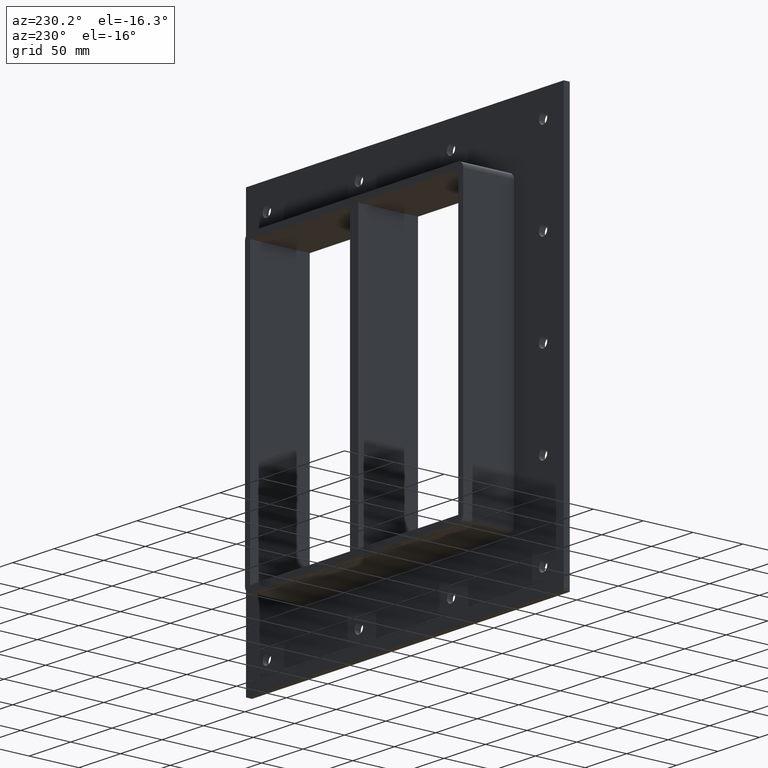
[diagram: clean part render]
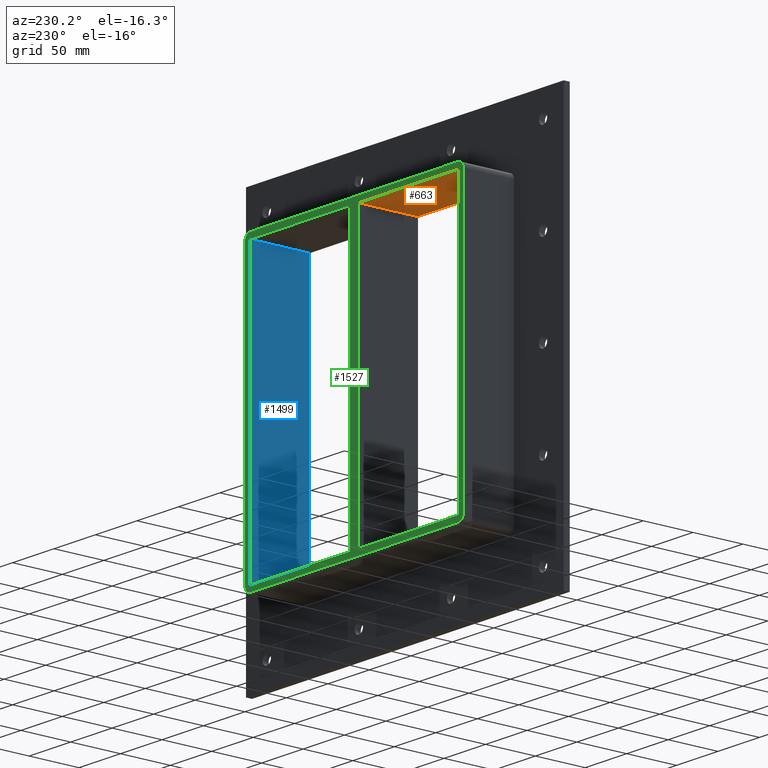
[diagram: same view with three faces highlighted in distinct colors, each labeled with its STEP entity id]
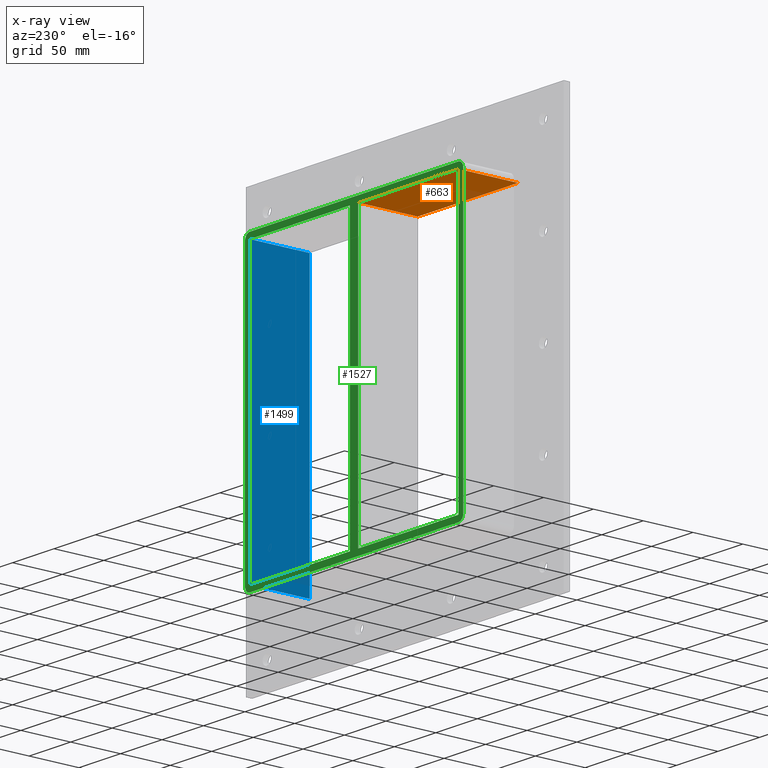
[diagram: x-ray of the same camera — body ghosted, the three highlighted faces saturated]
A machine part, auxiliary view with three faces highlighted in distinct colors.
The next image is the same camera in x-ray (body ghosted, the three faces saturated) — at least one of them is partly hidden behind the body in this view.
Their STEP definitions:

[orange] entity #663 — the highlighted planar face has unit normal (0, 0, 1).
#467=CARTESIAN_POINT('',(-5.000000000001368,-3.0,139.0));
#468=VERTEX_POINT('',#467);
#475=CARTESIAN_POINT('',(-5.000000000001368,57.0,139.0));
#476=VERTEX_POINT('',#475);
#477=CARTESIAN_POINT('',(-5.000000000001368,57.000000000000007,139.0));
#478=DIRECTION('',(0.0,-1.0,0.0));
#479=VECTOR('',#478,60.000000000000007);
#480=LINE('',#477,#479);
#481=EDGE_CURVE('',#476,#468,#480,.T.);
#633=CARTESIAN_POINT('',(-125.5,0.0,139.0));
#634=DIRECTION('',(0.0,0.0,1.0));
#635=DIRECTION('',(1.0,0.0,0.0));
#636=AXIS2_PLACEMENT_3D('',#633,#634,#635);
#637=PLANE('',#636);
#638=ORIENTED_EDGE('',*,*,#481,.T.);
#639=CARTESIAN_POINT('',(-125.50000000000003,-3.0,139.0));
#640=VERTEX_POINT('',#639);
#641=CARTESIAN_POINT('',(-125.50000000000003,-3.0,139.0));
#642=DIRECTION('',(1.0,0.0,0.0));
#643=VECTOR('',#642,120.49999999999866);
#644=LINE('',#641,#643);
#645=EDGE_CURVE('',#640,#468,#644,.T.);
#646=ORIENTED_EDGE('',*,*,#645,.F.);
#647=CARTESIAN_POINT('',(-125.50000000000003,57.0,139.0));
#648=VERTEX_POINT('',#647);
#649=CARTESIAN_POINT('',(-125.5,-3.0,139.0));
#650=DIRECTION('',(0.0,1.0,0.0));
#651=VECTOR('',#650,60.0);
#652=LINE('',#649,#651);
#653=EDGE_CURVE('',#640,#648,#652,.T.);
#654=ORIENTED_EDGE('',*,*,#653,.T.);
#655=CARTESIAN_POINT('',(-5.000000000001371,57.0,139.0));
#656=DIRECTION('',(-1.0,0.0,0.0));
#657=VECTOR('',#656,120.49999999999866);
#658=LINE('',#655,#657);
#659=EDGE_CURVE('',#476,#648,#658,.T.);
#660=ORIENTED_EDGE('',*,*,#659,.F.);
#661=EDGE_LOOP('',(#638,#646,#654,#660));
#662=FACE_OUTER_BOUND('',#661,.T.);
#663=ADVANCED_FACE('',(#662),#637,.F.);

[blue] entity #1499 — the highlighted planar face has unit normal (1, 0, 0).
#577=CARTESIAN_POINT('',(125.49999999999999,-3.0,-139.0));
#578=VERTEX_POINT('',#577);
#585=CARTESIAN_POINT('',(125.49999999999999,57.0,-139.0));
#586=VERTEX_POINT('',#585);
#587=CARTESIAN_POINT('',(125.49999999999999,56.999999999999993,-139.0));
#588=DIRECTION('',(0.0,-1.0,0.0));
#589=VECTOR('',#588,59.999999999999993);
#590=LINE('',#587,#589);
#591=EDGE_CURVE('',#586,#578,#590,.T.);
#608=CARTESIAN_POINT('',(125.49999999999999,57.0,139.0));
#609=VERTEX_POINT('',#608);
#616=CARTESIAN_POINT('',(125.49999999999999,-3.0,139.0));
#617=VERTEX_POINT('',#616);
#618=CARTESIAN_POINT('',(125.49999999999999,-3.0,139.0));
#619=DIRECTION('',(0.0,1.0,0.0));
#620=VECTOR('',#619,60.0);
#621=LINE('',#618,#620);
#622=EDGE_CURVE('',#617,#609,#621,.T.);
#1382=CARTESIAN_POINT('',(125.49999999999999,-3.0,139.0));
#1383=DIRECTION('',(0.0,0.0,-1.0));
#1384=VECTOR('',#1383,278.0);
#1385=LINE('',#1382,#1384);
#1386=EDGE_CURVE('',#617,#578,#1385,.T.);
#1483=CARTESIAN_POINT('',(125.49999999999999,0.0,139.0));
#1484=DIRECTION('',(1.0,0.0,0.0));
#1485=DIRECTION('',(0.0,0.0,-1.0));
#1486=AXIS2_PLACEMENT_3D('',#1483,#1484,#1485);
#1487=PLANE('',#1486);
#1488=ORIENTED_EDGE('',*,*,#591,.T.);
#1489=ORIENTED_EDGE('',*,*,#1386,.F.);
#1490=ORIENTED_EDGE('',*,*,#622,.T.);
#1491=CARTESIAN_POINT('',(125.49999999999999,57.0,-138.99999999999997));
#1492=DIRECTION('',(0.0,0.0,1.0));
#1493=VECTOR('',#1492,278.0);
#1494=LINE('',#1491,#1493);
#1495=EDGE_CURVE('',#586,#609,#1494,.T.);
#1496=ORIENTED_EDGE('',*,*,#1495,.F.);
#1497=EDGE_LOOP('',(#1488,#1489,#1490,#1496));
#1498=FACE_OUTER_BOUND('',#1497,.T.);
#1499=ADVANCED_FACE('',(#1498),#1487,.F.);

[green] entity #1527 — the highlighted planar face has unit normal (0, 1, 0).
#475=CARTESIAN_POINT('',(-5.000000000001368,57.0,139.0));
#476=VERTEX_POINT('',#475);
#483=CARTESIAN_POINT('',(-5.000000000001315,57.0,-139.0));
#484=VERTEX_POINT('',#483);
#485=CARTESIAN_POINT('',(-5.000000000001315,57.0,-139.0));
#486=DIRECTION('',(0.0,0.0,1.0));
#487=VECTOR('',#486,278.0);
#488=LINE('',#485,#487);
#489=EDGE_CURVE('',#484,#476,#488,.T.);
#515=CARTESIAN_POINT('',(5.0,57.0,-138.99999999998175));
#516=VERTEX_POINT('',#515);
#523=CARTESIAN_POINT('',(5.0,57.0,139.0));
#524=VERTEX_POINT('',#523);
#525=CARTESIAN_POINT('',(5.0,57.0,139.0));
#526=DIRECTION('',(0.0,0.0,-1.0));
#527=VECTOR('',#526,277.99999999998175);
#528=LINE('',#525,#527);
#529=EDGE_CURVE('',#524,#516,#528,.T.);
#546=CARTESIAN_POINT('',(-125.50000000000003,57.0,-139.0));
#547=VERTEX_POINT('',#546);
#548=CARTESIAN_POINT('',(-125.50000000000004,57.0,-139.0));
#549=DIRECTION('',(1.0,0.0,0.0));
#550=VECTOR('',#549,120.49999999999872);
#551=LINE('',#548,#550);
#552=EDGE_CURVE('',#547,#484,#551,.T.);
#585=CARTESIAN_POINT('',(125.49999999999999,57.0,-139.0));
#586=VERTEX_POINT('',#585);
#593=CARTESIAN_POINT('',(5.0,57.0,-139.0));
#594=DIRECTION('',(1.0,0.0,0.0));
#595=VECTOR('',#594,120.49999999999999);
#596=LINE('',#593,#595);
#597=EDGE_CURVE('',#516,#586,#596,.T.);
#608=CARTESIAN_POINT('',(125.49999999999999,57.0,139.0));
#609=VERTEX_POINT('',#608);
#610=CARTESIAN_POINT('',(125.49999999999999,57.0,139.0));
#611=DIRECTION('',(-1.0,0.0,0.0));
#612=VECTOR('',#611,120.49999999999999);
#613=LINE('',#610,#612);
#614=EDGE_CURVE('',#609,#524,#613,.T.);
#647=CARTESIAN_POINT('',(-125.50000000000003,57.0,139.0));
#648=VERTEX_POINT('',#647);
#655=CARTESIAN_POINT('',(-5.000000000001371,57.0,139.0));
#656=DIRECTION('',(-1.0,0.0,0.0));
#657=VECTOR('',#656,120.49999999999866);
#658=LINE('',#655,#657);
#659=EDGE_CURVE('',#476,#648,#658,.T.);
#1042=CARTESIAN_POINT('',(-125.5,57.0,138.99999999999997));
#1043=DIRECTION('',(0.0,0.0,-1.0));
#1044=VECTOR('',#1043,278.0);
#1045=LINE('',#1042,#1044);
#1046=EDGE_CURVE('',#648,#547,#1045,.T.);
#1096=CARTESIAN_POINT('',(131.5,57.0,139.0));
#1097=VERTEX_POINT('',#1096);
#1104=CARTESIAN_POINT('',(125.5,57.0,145.0));
#1105=VERTEX_POINT('',#1104);
#1106=CARTESIAN_POINT('',(125.5,57.0,139.0));
#1107=DIRECTION('',(0.0,-1.0,0.0));
#1108=DIRECTION('',(0.707106781186548,0.0,0.707106781186548));
#1109=AXIS2_PLACEMENT_3D('',#1106,#1107,#1108);
#1110=CIRCLE('',#1109,6.000000000000002);
#1111=EDGE_CURVE('',#1097,#1105,#1110,.T.);
#1152=CARTESIAN_POINT('',(131.5,57.0,-139.0));
#1153=VERTEX_POINT('',#1152);
#1160=CARTESIAN_POINT('',(131.5,57.0,139.0));
#1161=DIRECTION('',(0.0,0.0,-1.0));
#1162=VECTOR('',#1161,278.0);
#1163=LINE('',#1160,#1162);
#1164=EDGE_CURVE('',#1097,#1153,#1163,.T.);
#1225=CARTESIAN_POINT('',(125.49999999999997,57.0,-145.0));
#1226=VERTEX_POINT('',#1225);
#1233=CARTESIAN_POINT('',(125.49999999999997,57.0,-139.0));
#1234=DIRECTION('',(0.0,-1.0,0.0));
#1235=DIRECTION('',(0.707106781186548,0.0,-0.707106781186548));
#1236=AXIS2_PLACEMENT_3D('',#1233,#1234,#1235);
#1237=CIRCLE('',#1236,6.000000000000002);
#1238=EDGE_CURVE('',#1226,#1153,#1237,.T.);
#1299=CARTESIAN_POINT('',(-125.50000000000004,57.0,-145.0));
#1300=VERTEX_POINT('',#1299);
#1307=CARTESIAN_POINT('',(125.49999999999999,57.0,-145.0));
#1308=DIRECTION('',(-1.0,0.0,0.0));
#1309=VECTOR('',#1308,251.0);
#1310=LINE('',#1307,#1309);
#1311=EDGE_CURVE('',#1226,#1300,#1310,.T.);
#1398=CARTESIAN_POINT('',(-131.50000000000003,57.0,-139.0));
#1399=VERTEX_POINT('',#1398);
#1406=CARTESIAN_POINT('',(-125.50000000000004,57.0,-139.0));
#1407=DIRECTION('',(0.0,-1.0,0.0));
#1408=DIRECTION('',(-0.707106781186545,0.0,-0.70710678118655));
#1409=AXIS2_PLACEMENT_3D('',#1406,#1407,#1408);
#1410=CIRCLE('',#1409,6.000000000000001);
#1411=EDGE_CURVE('',#1399,#1300,#1410,.T.);
#1423=CARTESIAN_POINT('',(-131.50000000000003,57.0,139.0));
#1424=VERTEX_POINT('',#1423);
#1431=CARTESIAN_POINT('',(-131.50000000000003,57.0,-139.0));
#1432=DIRECTION('',(0.0,0.0,1.0));
#1433=VECTOR('',#1432,278.0);
#1434=LINE('',#1431,#1433);
#1435=EDGE_CURVE('',#1399,#1424,#1434,.T.);
#1447=CARTESIAN_POINT('',(-125.5,57.0,145.0));
#1448=VERTEX_POINT('',#1447);
#1455=CARTESIAN_POINT('',(-125.5,57.0,139.0));
#1456=DIRECTION('',(0.0,-1.0,0.0));
#1457=DIRECTION('',(-0.707106781186548,0.0,0.707106781186548));
#1458=AXIS2_PLACEMENT_3D('',#1455,#1456,#1457);
#1459=CIRCLE('',#1458,6.000000000000002);
#1460=EDGE_CURVE('',#1448,#1424,#1459,.T.);
#1473=CARTESIAN_POINT('',(-125.50000000000001,57.0,145.0));
#1474=DIRECTION('',(1.0,0.0,0.0));
#1475=VECTOR('',#1474,251.0);
#1476=LINE('',#1473,#1475);
#1477=EDGE_CURVE('',#1448,#1105,#1476,.T.);
#1491=CARTESIAN_POINT('',(125.49999999999999,57.0,-138.99999999999997));
#1492=DIRECTION('',(0.0,0.0,1.0));
#1493=VECTOR('',#1492,278.0);
#1494=LINE('',#1491,#1493);
#1495=EDGE_CURVE('',#586,#609,#1494,.T.);
#1500=CARTESIAN_POINT('',(-1.578805E-014,57.0,0.0));
#1501=DIRECTION('',(0.0,1.0,0.0));
#1502=DIRECTION('',(0.0,0.0,1.0));
#1503=AXIS2_PLACEMENT_3D('',#1500,#1501,#1502);
#1504=PLANE('',#1503);
#1505=ORIENTED_EDGE('',*,*,#1238,.F.);
#1506=ORIENTED_EDGE('',*,*,#1311,.T.);
#1507=ORIENTED_EDGE('',*,*,#1411,.F.);
#1508=ORIENTED_EDGE('',*,*,#1435,.T.);
#1509=ORIENTED_EDGE('',*,*,#1460,.F.);
#1510=ORIENTED_EDGE('',*,*,#1477,.T.);
#1511=ORIENTED_EDGE('',*,*,#1111,.F.);
#1512=ORIENTED_EDGE('',*,*,#1164,.T.);
#1513=EDGE_LOOP('',(#1505,#1506,#1507,#1508,#1509,#1510,#1511,#1512));
#1514=FACE_OUTER_BOUND('',#1513,.T.);
#1515=ORIENTED_EDGE('',*,*,#597,.T.);
#1516=ORIENTED_EDGE('',*,*,#1495,.T.);
#1517=ORIENTED_EDGE('',*,*,#614,.T.);
#1518=ORIENTED_EDGE('',*,*,#529,.T.);
#1519=EDGE_LOOP('',(#1515,#1516,#1517,#1518));
#1520=FACE_BOUND('',#1519,.T.);
#1521=ORIENTED_EDGE('',*,*,#489,.T.);
#1522=ORIENTED_EDGE('',*,*,#659,.T.);
#1523=ORIENTED_EDGE('',*,*,#1046,.T.);
#1524=ORIENTED_EDGE('',*,*,#552,.T.);
#1525=EDGE_LOOP('',(#1521,#1522,#1523,#1524));
#1526=FACE_BOUND('',#1525,.T.);
#1527=ADVANCED_FACE('',(#1514,#1520,#1526),#1504,.T.);